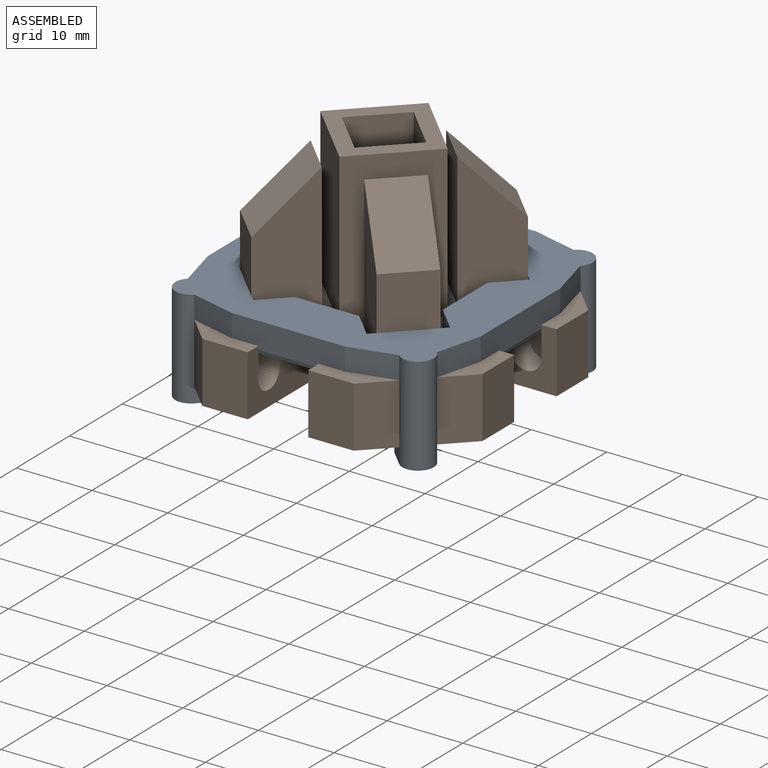
[diagram: assembled view]
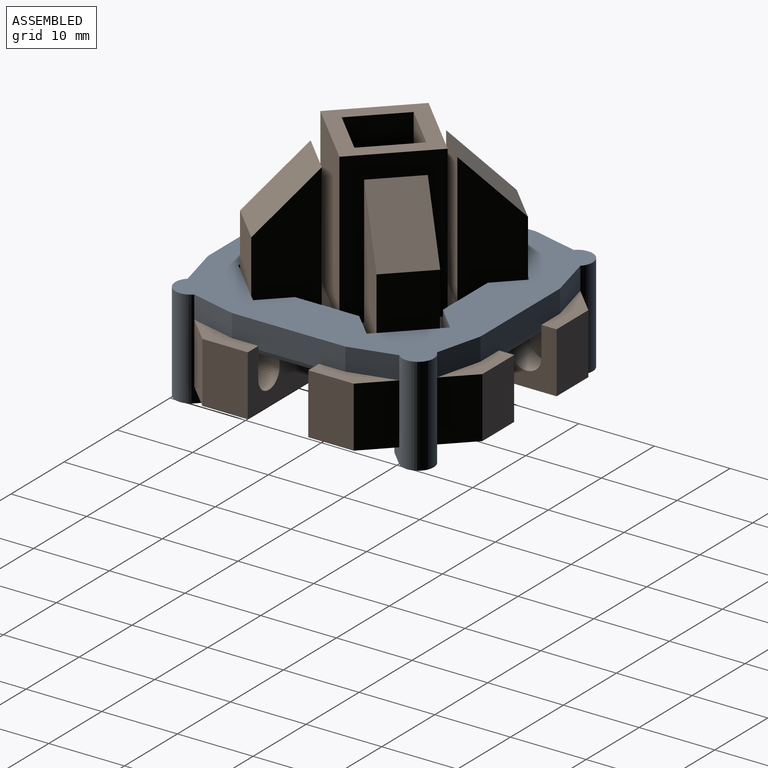
[diagram: assembled view, second angle]
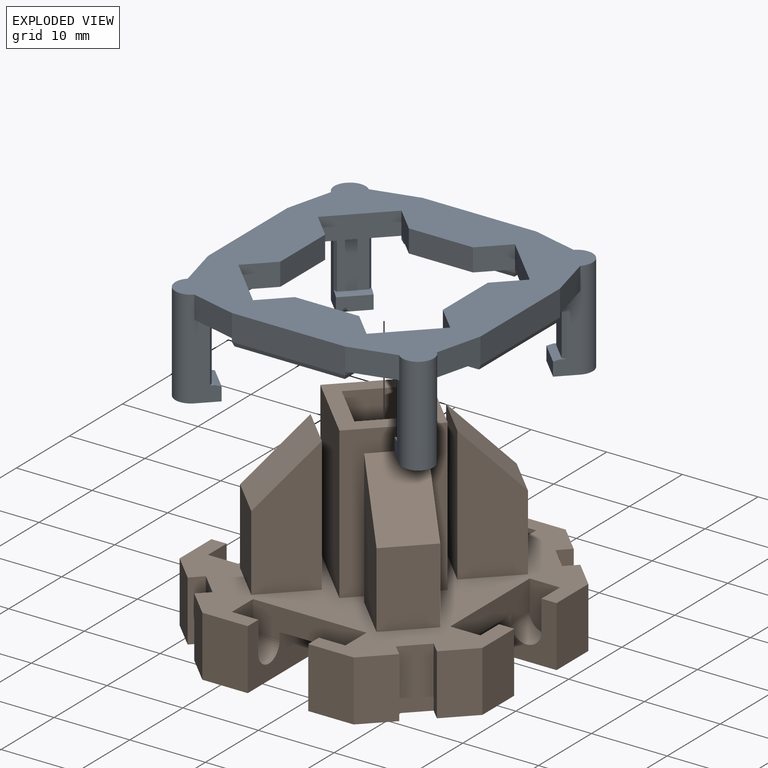
[diagram: exploded view]
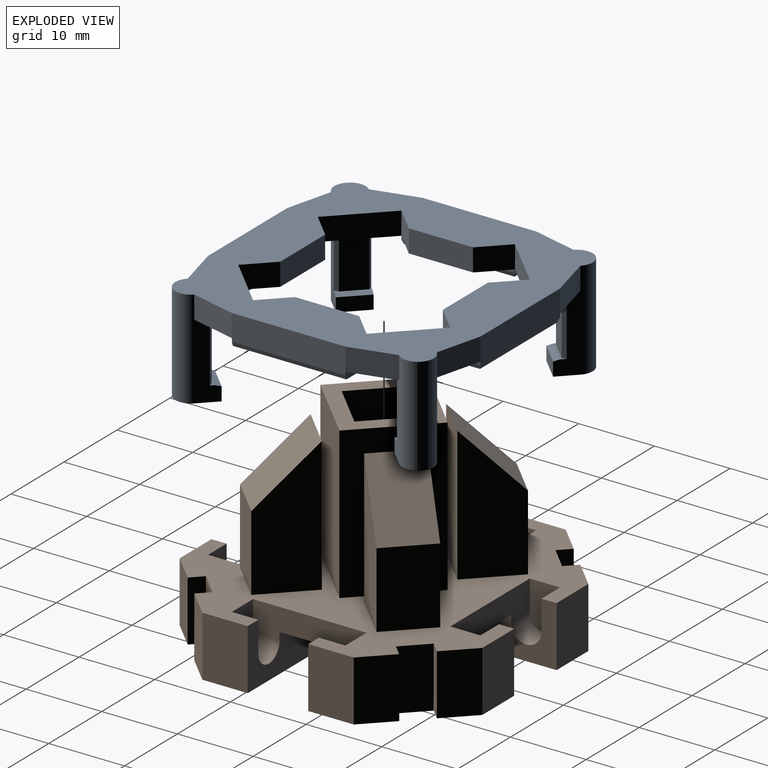
[diagram: exploded view, second angle]
ASSEMBLY  parts=2 mates=3
PART A: 106 faces, bbox 36x36x13 mm
  f0: plane 15x0.45mm, normal (1,0,0), area 6.8mm2, adj f16,f17,f78,f91
  f1: plane 15x1mm, normal (-1,0,0), area 15mm2, adj f32,f33,f34,f72
  f2: plane 15x0.45mm, normal (0,1,0), area 6.8mm2, adj f24,f25,f69,f95
  f3: plane 10x2.12mm, normal (-0.71,0.71,0), area 19.6mm2, adj f48,f49,f62,f63,f64,f68,f103
  f4: plane 8x2.37mm, normal (-0.71,-0.71,0), area 26.8mm2, adj f48,f62,f102,f103
  f5: plane 10x2.12mm, normal (0.71,-0.71,0), area 17.9mm2, adj f48,f49,f62,f63,f64,f68,f102
  f6: plane 15x3.45mm, normal (0,1,0), area 51.8mm2, adj f7,f9,f39,f46,f47,f88
  f7: plane 4x0.45mm, normal (-1,0,0), area 1.8mm2, adj f6,f8,f11,f89
  f8: plane 15x0.45mm, normal (0,-1,0), area 6.8mm2, adj f7,f9,f75,f87
  f9: plane 4x0.45mm, normal (1,0,0), area 1.8mm2, adj f6,f8,f48,f86
  f10: plane 14.6x3.6mm, normal (0,0,-1), area 52.6mm2, adj f86,f87,f88,f89
  f11: plane 10.5x10.5mm, normal (0,0,-1), area 56.1mm2, adj f7,f12,f13,f14,f17,f35,f39,f40
  f12: plane 10x2.12mm, normal (0.71,0.71,0), area 17.9mm2, adj f11,f50,f59,f60,f61,f67,f105
  f13: plane 10x2.12mm, normal (-0.71,-0.71,0), area 17.9mm2, adj f11,f50,f59,f60,f61,f67,f104
  f14: plane 8x2.52mm, normal (0.71,-0.71,0), area 28.5mm2, adj f11,f59,f104,f105
  f15: plane 15x3.45mm, normal (-1,0,0), area 51.8mm2, adj f16,f17,f40,f41,f47,f92
  f16: plane 4x0.45mm, normal (0,-1,0), area 1.8mm2, adj f0,f15,f19,f93
  f17: plane 4x0.45mm, normal (0,1,0), area 1.8mm2, adj f0,f11,f15,f90
  f18: plane 14.6x3.6mm, normal (0,0,-1), area 52.6mm2, adj f90,f91,f92,f93
  f19: plane 10.5x10.5mm, normal (0,0,-1), area 56.1mm2, adj f16,f20,f21,f22,f25,f38,f41,f42
  f20: plane 10x2.12mm, normal (-0.71,0.71,0), area 17.9mm2, adj f19,f52,f56,f57,f58,f66,f101
  f21: plane 10x2.12mm, normal (0.71,-0.71,0), area 19.6mm2, adj f19,f52,f56,f57,f58,f66,f100
  f22: plane 8x2.37mm, normal (0.71,0.71,0), area 26.8mm2, adj f19,f56,f100,f101
  f23: plane 15x3.45mm, normal (0,-1,0), area 51.8mm2, adj f24,f25,f42,f43,f47,f96
  f24: plane 4x0.45mm, normal (1,0,0), area 1.8mm2, adj f2,f23,f27,f97
  f25: plane 4x0.45mm, normal (-1,0,0), area 1.8mm2, adj f2,f19,f23,f94
  f26: plane 14.6x3.6mm, normal (0,0,-1), area 52.6mm2, adj f94,f95,f96,f97
  f27: plane 10.5x10.5mm, normal (0,0,-1), area 56.1mm2, adj f24,f28,f29,f30,f33,f37,f43,f44
  f28: plane 10x2.12mm, normal (-0.71,-0.71,0), area 17.9mm2, adj f27,f51,f53,f54,f55,f65,f98
  f29: plane 10x2.12mm, normal (0.71,0.71,0), area 19.6mm2, adj f27,f51,f53,f54,f55,f65,f99
  f30: plane 8x2.37mm, normal (-0.71,0.71,0), area 26.8mm2, adj f27,f53,f98,f99
  f31: plane 15x3.45mm, normal (1,0,0), area 51.8mm2, adj f32,f33,f44,f45,f47,f85
  f32: plane 4x1mm, normal (0,1,0), area 3.9mm2, adj f1,f31,f34,f48,f85
  f33: plane 4x1mm, normal (0,-1,0), area 3.9mm2, adj f1,f27,f31,f34,f85
  f34: plane 15x3.8mm, normal (0,0,-1), area 57mm2, adj f1,f32,f33,f85
  f35: plane 6.5x6.5mm, normal (0.71,-0.71,0), area 27.6mm2, adj f11,f47,f76,f80
  f36: plane 6.5x6.5mm, normal (-0.71,-0.71,0), area 27.6mm2, adj f47,f48,f73,f77
  f37: plane 6.5x6.5mm, normal (-0.71,0.71,0), area 27.6mm2, adj f27,f47,f70,f74
  f38: plane 6.5x6.5mm, normal (0.71,0.71,0), area 27.6mm2, adj f19,f47,f71,f79
  f39: plane 6.04x3mm, normal (-0.25,0.97,0), area 18.7mm2, adj f6,f11,f47,f50
  f40: plane 6.04x3mm, normal (-0.97,0.25,0), area 18.7mm2, adj f11,f15,f47,f50
  f41: plane 6.04x3mm, normal (-0.97,-0.25,0), area 18.7mm2, adj f15,f19,f47,f52
  f42: plane 6.04x3mm, normal (-0.25,-0.97,0), area 18.7mm2, adj f19,f23,f47,f52
  f43: plane 6.04x3mm, normal (0.25,-0.97,0), area 18.7mm2, adj f23,f27,f47,f51
  f44: plane 6.04x3mm, normal (0.97,-0.25,0), area 18.7mm2, adj f27,f31,f47,f51
  f45: plane 6.04x3mm, normal (0.97,0.25,0), area 18.7mm2, adj f31,f47,f48,f49
  f46: plane 6.04x3mm, normal (0.25,0.97,0), area 18.7mm2, adj f6,f47,f48,f49
  f47: plane 36x36mm, normal (0,0,1), area 676.8mm2, adj f6,f15,f23,f31,f35,f36,f37,f38
  f48: plane 10.5x10.5mm, normal (0,0,-1), area 56.1mm2, adj f3,f4,f5,f9,f32,f36,f45,f46
  f49: cylinder r=2.07mm len=13mm, axis (0,0,1), area 84.6mm2, adj f3,f5,f45,f46,f47,f63
  f50: cylinder r=2.07mm len=13mm, axis (0,0,1), area 84.6mm2, adj f12,f13,f39,f40,f47,f60
  f51: cylinder r=2.07mm len=13mm, axis (0,0,1), area 84.6mm2, adj f28,f29,f43,f44,f47,f55
  f52: cylinder r=2.07mm len=13mm, axis (0,0,1), area 84.6mm2, adj f20,f21,f41,f42,f47,f57
  f53: plane 3.46x3.31mm, normal (0,0,1), area 1.2mm2, adj f28,f29,f30,f65,f98,f99
  f54: plane 2.93x2.93mm, normal (-0.71,0.71,0), area 7.5mm2, adj f28,f29,f55,f65
  f55: plane 5.66x5.66mm, normal (0,0,-1), area 19.2mm2, adj f28,f29,f51,f54
  f56: plane 3.46x3.31mm, normal (0,0,1), area 1.2mm2, adj f20,f21,f22,f66,f100,f101
  f57: plane 5.66x5.66mm, normal (0,0,-1), area 19.2mm2, adj f20,f21,f52,f58
  f58: plane 2.93x2.93mm, normal (0.71,0.71,0), area 7.5mm2, adj f20,f21,f57,f66
  f59: plane 3.46x3.46mm, normal (0,0,1), area 1.2mm2, adj f12,f13,f14,f67,f104,f105
  f60: plane 5.66x5.66mm, normal (0,0,-1), area 19.2mm2, adj f12,f13,f50,f61
  f61: plane 2.93x2.93mm, normal (0.71,-0.71,0), area 7.5mm2, adj f12,f13,f60,f67
  f62: plane 3.46x3.31mm, normal (0,0,1), area 1.2mm2, adj f3,f4,f5,f68,f102,f103
  f63: plane 5.66x5.66mm, normal (0,0,-1), area 19.2mm2, adj f3,f5,f49,f64
  f64: plane 2.93x2.93mm, normal (-0.71,-0.71,0), area 7.5mm2, adj f3,f5,f63,f68
  f65: plane 3.46x3.46mm, normal (-0.18,0.18,0.97), area 3.2mm2, adj f28,f29,f53,f54
  f66: plane 3.46x3.46mm, normal (0.18,0.18,0.97), area 3.2mm2, adj f20,f21,f56,f58
  f67: plane 3.46x3.46mm, normal (0.18,-0.18,0.97), area 3.2mm2, adj f12,f13,f59,f61
  f68: plane 3.46x3.46mm, normal (-0.18,-0.18,0.97), area 3.2mm2, adj f3,f5,f62,f64
  f69: plane 15x3.26mm, normal (0,0,-1), area 38.2mm2, adj f2,f70,f71,f83
  f70: plane 3.26x3.26mm, normal (0.71,0.71,0), area 13.8mm2, adj f37,f47,f69,f83
  f71: plane 3.26x3.26mm, normal (-0.71,0.71,0), area 13.8mm2, adj f38,f47,f69,f83
  f72: plane 15x3.26mm, normal (0,0,-1), area 38.2mm2, adj f1,f73,f74,f81
  f73: plane 3.26x3.26mm, normal (-0.71,0.71,0), area 13.8mm2, adj f36,f47,f72,f81
  f74: plane 3.26x3.26mm, normal (-0.71,-0.71,0), area 13.8mm2, adj f37,f47,f72,f81
  f75: plane 15x3.26mm, normal (0,0,-1), area 38.2mm2, adj f8,f76,f77,f82
  f76: plane 3.26x3.26mm, normal (-0.71,-0.71,0), area 13.8mm2, adj f35,f47,f75,f82
  f77: plane 3.26x3.26mm, normal (0.71,-0.71,0), area 13.8mm2, adj f36,f47,f75,f82
  f78: plane 15x3.26mm, normal (0,0,-1), area 38.2mm2, adj f0,f79,f80,f84
  f79: plane 3.26x3.26mm, normal (0.71,-0.71,0), area 13.8mm2, adj f38,f47,f78,f84
  f80: plane 3.26x3.26mm, normal (0.71,0.71,0), area 13.8mm2, adj f35,f47,f78,f84
  f81: plane 8.49x3mm, normal (-1,0,0), area 25.5mm2, adj f47,f72,f73,f74
  f82: plane 8.49x3mm, normal (0,-1,0), area 25.5mm2, adj f47,f75,f76,f77
  f83: plane 8.49x3mm, normal (0,1,0), area 25.5mm2, adj f47,f69,f70,f71
  f84: plane 8.49x3mm, normal (1,0,0), area 25.5mm2, adj f47,f78,f79,f80
  f85: plane 15x0.55mm, normal (0.94,0,-0.34), area 8.8mm2, adj f31,f32,f33,f34
  f86: plane 4x0.55mm, normal (0.94,0,-0.34), area 2.2mm2, adj f9,f10,f87,f88
  f87: plane 15x0.55mm, normal (0,-0.94,-0.34), area 8.7mm2, adj f8,f10,f86,f89
  f88: plane 15x0.55mm, normal (0,0.94,-0.34), area 8.7mm2, adj f6,f10,f86,f89
  f89: plane 4x0.55mm, normal (-0.94,0,-0.34), area 2.2mm2, adj f7,f10,f87,f88
  f90: plane 4x0.55mm, normal (0,0.94,-0.34), area 2.2mm2, adj f17,f18,f91,f92
  f91: plane 15x0.55mm, normal (0.94,0,-0.34), area 8.7mm2, adj f0,f18,f90,f93
  f92: plane 15x0.55mm, normal (-0.94,0,-0.34), area 8.7mm2, adj f15,f18,f90,f93
  f93: plane 4x0.55mm, normal (0,-0.94,-0.34), area 2.2mm2, adj f16,f18,f91,f92
  f94: plane 4x0.55mm, normal (-0.94,0,-0.34), area 2.2mm2, adj f25,f26,f95,f96
  f95: plane 15x0.55mm, normal (0,0.94,-0.34), area 8.7mm2, adj f2,f26,f94,f97
  f96: plane 15x0.55mm, normal (0,-0.94,-0.34), area 8.7mm2, adj f23,f26,f94,f97
  f97: plane 4x0.55mm, normal (0.94,0,-0.34), area 2.2mm2, adj f24,f26,f95,f96
  f98: plane 8x0.56mm, normal (-0.97,-0.26,0), area 4.6mm2, adj f27,f28,f30,f53
  f99: plane 8x0.56mm, normal (-0.26,0.97,0), area 4.6mm2, adj f27,f29,f30,f53
  f100: plane 8x0.56mm, normal (0.97,0.26,0), area 4.6mm2, adj f19,f21,f22,f56
  f101: plane 8x0.56mm, normal (-0.26,0.97,0), area 4.6mm2, adj f19,f20,f22,f56
  f102: plane 8x0.56mm, normal (0.26,-0.97,0), area 4.6mm2, adj f4,f5,f48,f62
  f103: plane 8x0.56mm, normal (-0.97,-0.26,0), area 4.6mm2, adj f3,f4,f48,f62
  f104: plane 8x0.56mm, normal (-0.26,-0.97,0), area 4.6mm2, adj f11,f13,f14,f59
  f105: plane 8x0.56mm, normal (0.97,0.26,0), area 4.6mm2, adj f11,f12,f14,f59
PART B: 101 faces, bbox 40x40x28 mm
  f0: plane 8x3.54mm, normal (-0.71,0.71,0), area 40mm2, adj f4,f7,f10,f92
  f1: plane 8x3.54mm, normal (0.71,0.71,0), area 40mm2, adj f4,f5,f25,f98
  f2: plane 8x3.54mm, normal (0.71,-0.71,0), area 40mm2, adj f4,f6,f28,f95
  f3: plane 8x3.54mm, normal (-0.71,-0.71,0), area 40mm2, adj f4,f8,f11,f89
  f4: plane 40x40mm, normal (0,0,-1), area 704.2mm2, adj f0,f1,f2,f3,f9,f10,f11,f12
  f5: plane 16x16mm, normal (0,0,1), area 197.7mm2, adj f1,f19,f25,f26,f29,f32,f98,f99
  f6: plane 16x16mm, normal (0,0,1), area 197.7mm2, adj f2,f9,f20,f28,f30,f33,f95,f96
  f7: plane 16x16mm, normal (0,0,1), area 197.7mm2, adj f0,f10,f21,f22,f27,f31,f92,f93
  f8: plane 16x16mm, normal (0,0,1), area 197.7mm2, adj f3,f11,f12,f23,f24,f34,f89,f90
  f9: plane 8x6mm, normal (1,0,0), area 48mm2, adj f4,f6,f30,f33
  f10: plane 8x6mm, normal (0,1,0), area 48mm2, adj f0,f4,f7,f21
  f11: plane 8x6mm, normal (-1,0,0), area 48mm2, adj f3,f4,f8,f24
  f12: plane 8x6mm, normal (0,-1,0), area 48mm2, adj f4,f8,f23,f34
  f13: plane 4x3.5mm, normal (1,0,0), area 14mm2, adj f4,f22,f38,f55
  f14: plane 4x3.5mm, normal (0,1,0), area 14mm2, adj f4,f20,f42,f54
  f15: plane 4x3.5mm, normal (0,-1,0), area 14mm2, adj f4,f19,f46,f53
  f16: plane 4x3.5mm, normal (-1,0,0), area 14mm2, adj f4,f29,f49,f52
  f17: plane 28x28mm, normal (0,0,1), area 364.4mm2, adj f19,f20,f21,f22,f23,f24,f29,f30
  f18: plane 11.17x11.17mm, normal (0,0,-1), area 42.8mm2, adj f51,f63,f64,f65,f66
  f19: plane 16x8mm, normal (-1,0,0), area 75.7mm2, adj f4,f5,f15,f17,f26,f29,f43,f53
  f20: plane 16x8mm, normal (-1,0,0), area 75.7mm2, adj f4,f6,f14,f17,f28,f30,f40,f54
  f21: plane 16x8mm, normal (1,0,0), area 75.7mm2, adj f4,f7,f10,f17,f22,f43,f44,f58
  f22: plane 16x8mm, normal (0,-1,0), area 75.7mm2, adj f4,f7,f13,f17,f21,f27,f35,f55
  f23: plane 16x8mm, normal (1,0,0), area 75.7mm2, adj f4,f8,f12,f17,f24,f39,f40,f59
  f24: plane 16x8mm, normal (0,1,0), area 75.7mm2, adj f4,f8,f11,f17,f23,f35,f37,f57
  f25: plane 8x6mm, normal (1,0,0), area 48mm2, adj f1,f4,f5,f29
  f26: plane 8x6mm, normal (0,1,0), area 48mm2, adj f4,f5,f19,f32
  f27: plane 8x6mm, normal (-1,0,0), area 48mm2, adj f4,f7,f22,f31
  f28: plane 8x6mm, normal (0,-1,0), area 48mm2, adj f2,f4,f6,f20
  f29: plane 16x8mm, normal (0,-1,0), area 75.7mm2, adj f4,f5,f16,f17,f19,f25,f48,f52
  f30: plane 16x8mm, normal (0,1,0), area 75.7mm2, adj f4,f6,f9,f17,f20,f48,f50,f56
  f31: plane 8x3.54mm, normal (-0.71,0.71,0), area 40mm2, adj f4,f7,f27,f93
  f32: plane 8x3.54mm, normal (0.71,0.71,0), area 40mm2, adj f4,f5,f26,f99
  f33: plane 8x3.54mm, normal (0.71,-0.71,0), area 40mm2, adj f4,f6,f9,f96
  f34: plane 8x3.54mm, normal (-0.71,-0.71,0), area 40mm2, adj f4,f8,f12,f90
  f35: plane 15x4mm, normal (-1,0,0), area 52mm2, adj f4,f17,f22,f24,f36,f38,f55,f57
  f36: plane 6x4mm, normal (0,1,0), area 22.3mm2, adj f4,f35,f37,f57
  f37: plane 4x3.5mm, normal (1,0,0), area 14mm2, adj f4,f24,f36,f57
  f38: plane 6x4mm, normal (0,-1,0), area 22.3mm2, adj f4,f13,f35,f55
  f39: plane 4x3.5mm, normal (0,1,0), area 14mm2, adj f4,f23,f41,f59
  f40: plane 15x4mm, normal (0,-1,0), area 52mm2, adj f4,f17,f20,f23,f41,f42,f54,f59
  f41: plane 6x4mm, normal (1,0,0), area 22.3mm2, adj f4,f39,f40,f59
  f42: plane 6x4mm, normal (-1,0,0), area 22.3mm2, adj f4,f14,f40,f54
  f43: plane 15x4mm, normal (0,1,0), area 52mm2, adj f4,f17,f19,f21,f45,f46,f53,f58
  f44: plane 4x3.5mm, normal (0,-1,0), area 14mm2, adj f4,f21,f45,f58
  f45: plane 6x4mm, normal (1,0,0), area 22.3mm2, adj f4,f43,f44,f58
  f46: plane 6x4mm, normal (-1,0,0), area 22.3mm2, adj f4,f15,f43,f53
  f47: plane 6x4mm, normal (0,1,0), area 22.3mm2, adj f4,f48,f50,f56
  f48: plane 15x4mm, normal (1,0,0), area 52mm2, adj f4,f17,f29,f30,f47,f49,f52,f56
  f49: plane 6x4mm, normal (0,-1,0), area 22.3mm2, adj f4,f16,f48,f52
  f50: plane 4x3.5mm, normal (-1,0,0), area 14mm2, adj f4,f30,f47,f56
  f51: cylinder r=2.5mm len=5mm, axis (0,0,-1), area 47.1mm2, adj f17,f18
  f52: cylinder r=2mm len=4mm, axis (0,-1,0), area 22mm2, adj f16,f29,f48,f49
  f53: cylinder r=2mm len=4mm, axis (-1,0,0), area 22mm2, adj f15,f19,f43,f46
  f54: cylinder r=2mm len=4mm, axis (-1,0,0), area 22mm2, adj f14,f20,f40,f42
  f55: cylinder r=2mm len=4mm, axis (0,-1,0), area 22mm2, adj f13,f22,f35,f38
  f56: cylinder r=2mm len=4mm, axis (0,-1,0), area 22mm2, adj f30,f47,f48,f50
  f57: cylinder r=2mm len=4mm, axis (0,-1,0), area 22mm2, adj f24,f35,f36,f37
  f58: cylinder r=2mm len=4mm, axis (-1,0,0), area 22mm2, adj f21,f43,f44,f45
  f59: cylinder r=2mm len=4mm, axis (-1,0,0), area 22mm2, adj f23,f39,f40,f41
  f60: plane 20x8.41mm, normal (0.71,0.71,0), area 238mm2, adj f4,f61,f67,f68
  f61: plane 20x8.41mm, normal (0.71,-0.71,0), area 238mm2, adj f4,f60,f62,f68
  f62: plane 20x8.41mm, normal (-0.71,-0.71,0), area 238mm2, adj f4,f61,f67,f68
  f63: plane 20x5.59mm, normal (0.71,0.71,0), area 158mm2, adj f18,f64,f66,f68
  f64: plane 20x5.59mm, normal (-0.71,0.71,0), area 158mm2, adj f18,f63,f65,f68
  f65: plane 20x5.59mm, normal (-0.71,-0.71,0), area 158mm2, adj f18,f64,f66,f68
  f66: plane 20x5.59mm, normal (0.71,-0.71,0), area 158mm2, adj f18,f63,f65,f68
  f67: plane 20x8.41mm, normal (-0.71,0.71,0), area 238mm2, adj f4,f60,f62,f68
  f68: plane 16.83x16.83mm, normal (0,0,-1), area 79.2mm2, adj f60,f61,f62,f63,f64,f65,f66,f67
  f69: plane 17.75x4.95mm, normal (0.71,0.71,0), area 124.3mm2, adj f4,f70,f72,f88
  f70: plane 17.75x5.48mm, normal (0.71,-0.71,0), area 107.6mm2, adj f4,f69,f71,f88
  f71: plane 10x4.95mm, normal (-0.71,-0.71,0), area 70mm2, adj f4,f70,f72,f88
  f72: plane 17.75x5.48mm, normal (-0.71,0.71,0), area 107.6mm2, adj f4,f69,f71,f88
  f73: plane 17.75x4.95mm, normal (0.71,-0.71,0), area 124.3mm2, adj f4,f74,f76,f87
  f74: plane 17.75x5.48mm, normal (-0.71,-0.71,0), area 107.6mm2, adj f4,f73,f75,f87
  f75: plane 10x4.95mm, normal (-0.71,0.71,0), area 70mm2, adj f4,f74,f76,f87
  f76: plane 17.75x5.48mm, normal (0.71,0.71,0), area 107.6mm2, adj f4,f73,f75,f87
  f77: plane 17.75x4.95mm, normal (-0.71,-0.71,0), area 124.3mm2, adj f4,f78,f80,f86
  f78: plane 17.75x5.48mm, normal (-0.71,0.71,0), area 107.6mm2, adj f4,f77,f79,f86
  f79: plane 10x4.95mm, normal (0.71,0.71,0), area 70mm2, adj f4,f78,f80,f86
  f80: plane 17.75x5.48mm, normal (0.71,-0.71,0), area 107.6mm2, adj f4,f77,f79,f86
  f81: plane 17.75x4.95mm, normal (-0.71,0.71,0), area 124.3mm2, adj f4,f82,f84,f85
  f82: plane 17.75x5.48mm, normal (0.71,0.71,0), area 107.6mm2, adj f4,f81,f83,f85
  f83: plane 10x4.95mm, normal (0.71,-0.71,0), area 70mm2, adj f4,f82,f84,f85
  f84: plane 17.75x5.48mm, normal (-0.71,-0.71,0), area 107.6mm2, adj f4,f81,f83,f85
  f85: plane 10.43x10.43mm, normal (0.5,-0.5,-0.71), area 76.7mm2, adj f81,f82,f83,f84
  f86: plane 10.43x10.43mm, normal (0.5,0.5,-0.71), area 76.7mm2, adj f77,f78,f79,f80
  f87: plane 10.43x10.43mm, normal (-0.5,0.5,-0.71), area 76.7mm2, adj f73,f74,f75,f76
  f88: plane 10.43x10.43mm, normal (-0.5,-0.5,-0.71), area 76.7mm2, adj f69,f70,f71,f72
  f89: plane 8x1.41mm, normal (0.71,-0.71,0), area 16mm2, adj f3,f4,f8,f91
  f90: plane 8x1.41mm, normal (-0.71,0.71,0), area 16mm2, adj f4,f8,f34,f91
  f91: plane 8x2.93mm, normal (-0.71,-0.71,0), area 33.1mm2, adj f4,f8,f89,f90
  f92: plane 8x1.41mm, normal (-0.71,-0.71,0), area 16mm2, adj f0,f4,f7,f94
  f93: plane 8x1.41mm, normal (0.71,0.71,0), area 16mm2, adj f4,f7,f31,f94
  f94: plane 8x2.93mm, normal (-0.71,0.71,0), area 33.1mm2, adj f4,f7,f92,f93
  f95: plane 8x1.41mm, normal (0.71,0.71,0), area 16mm2, adj f2,f4,f6,f97
  f96: plane 8x1.41mm, normal (-0.71,-0.71,0), area 16mm2, adj f4,f6,f33,f97
  f97: plane 8x2.93mm, normal (0.71,-0.71,0), area 33.1mm2, adj f4,f6,f95,f96
  f98: plane 8x1.41mm, normal (-0.71,0.71,0), area 16mm2, adj f1,f4,f5,f100
  f99: plane 8x1.41mm, normal (0.71,-0.71,0), area 16mm2, adj f4,f5,f32,f100
  f100: plane 8x2.93mm, normal (0.71,0.71,0), area 33.1mm2, adj f4,f5,f98,f99
PLACE A t=(28.78,5.44,-12.97)mm
PLACE B rot(axis=(1,0,0),180deg) t=(28.78,5.44,-11.97)mm
MATE planar B.f4 <-> A.f19  axis (0,0,1) through (34.31,15.92,-11.97)mm
MATE planar B.f35 <-> A.f0  axis (-1,0,0) through (14.78,9.44,-14.97)mm
MATE planar A.f8 <-> B.f40  axis (0,-1,0) through (28.78,19.44,-12.19)mm
